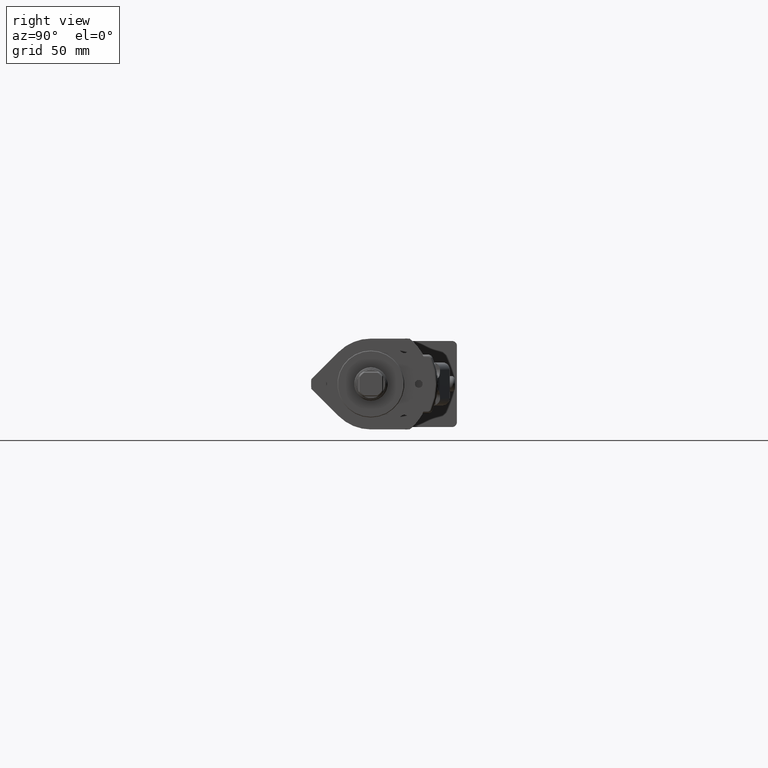
[diagram: clean part render]
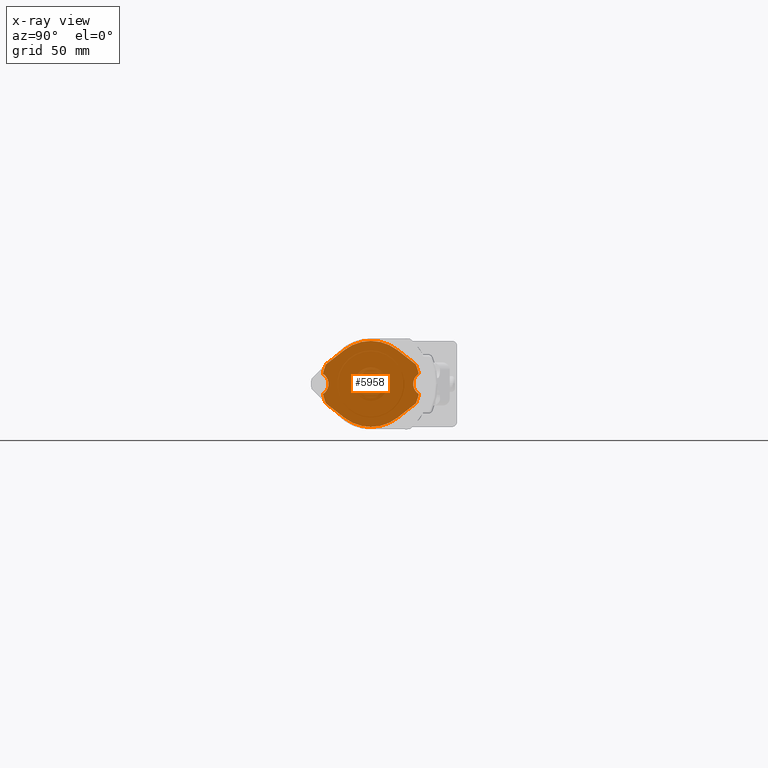
[diagram: x-ray — body ghosted, one internal face saturated and labeled with its STEP entity id]
A machine part, right view, then the same camera in x-ray: the body is ghosted and one INTERNAL B-rep face — a face not visible from any outside direction — is saturated and labeled: STEP entity #5958.
In plain terms, the highlighted planar face has unit normal (-1, 0, 0).
Its self-contained STEP definition (entity closure, byte-faithful):
#267 = DIRECTION ( 'NONE',  ( 0.0000000000000000000, 0.0000000000000000000, 1.000000000000000000 ) ) ;
#316 = CARTESIAN_POINT ( 'NONE',  ( -98.00000000000000000, 0.0000000000000000000, 0.0000000000000000000 ) ) ;
#328 = LINE ( 'NONE', #386, #8021 ) ;
#386 = CARTESIAN_POINT ( 'NONE',  ( -98.00000000000000000, -11.08190655586197000, -14.18419356492090700 ) ) ;
#738 = EDGE_CURVE ( 'NONE', #8998, #6715, #2213, .T. ) ;
#982 = EDGE_CURVE ( 'NONE', #8189, #3663, #2097, .T. ) ;
#1000 = CARTESIAN_POINT ( 'NONE',  ( -98.00000000000000000, -18.81285030327931900, 8.144118335731819900 ) ) ;
#1057 = DIRECTION ( 'NONE',  ( 0.0000000000000000000, 0.0000000000000000000, 1.000000000000000000 ) ) ;
#1116 = EDGE_CURVE ( 'NONE', #4750, #4584, #6874, .T. ) ;
#1174 = ORIENTED_EDGE ( 'NONE', *, *, #8829, .F. ) ;
#1193 = DIRECTION ( 'NONE',  ( -1.000000000000000000, 0.0000000000000000000, 0.0000000000000000000 ) ) ;
#1366 = AXIS2_PLACEMENT_3D ( 'NONE', #316, #5522, #1057 ) ;
#1638 = CIRCLE ( 'NONE', #7317, 20.50000000000000000 ) ;
#1760 = DIRECTION ( 'NONE',  ( 0.0000000000000000000, 0.7880107536067255700, 0.6156614753256536300 ) ) ;
#1796 = CIRCLE ( 'NONE', #6927, 18.00000000000000700 ) ;
#1833 = EDGE_CURVE ( 'NONE', #8449, #4750, #8957, .T. ) ;
#1948 = EDGE_CURVE ( 'NONE', #3964, #5835, #328, .T. ) ;
#2097 = CIRCLE ( 'NONE', #5967, 5.000000000000001800 ) ;
#2127 = CARTESIAN_POINT ( 'NONE',  ( -98.00000000000000000, 18.81285030327931900, 8.144118335731814500 ) ) ;
#2213 = LINE ( 'NONE', #1000, #5929 ) ;
#2232 = DIRECTION ( 'NONE',  ( -1.000000000000000000, 0.0000000000000000000, 0.0000000000000000000 ) ) ;
#2244 = ORIENTED_EDGE ( 'NONE', *, *, #3105, .F. ) ;
#2287 = ORIENTED_EDGE ( 'NONE', *, *, #1833, .F. ) ;
#2336 = DIRECTION ( 'NONE',  ( 0.0000000000000000000, -0.7880107536067163500, -0.6156614753256655100 ) ) ;
#2437 = CARTESIAN_POINT ( 'NONE',  ( -98.00000000000000000, -20.05594713656387600, -4.243699383245148800 ) ) ;
#2642 = DIRECTION ( 'NONE',  ( -1.000000000000000000, 0.0000000000000000000, 0.0000000000000000000 ) ) ;
#2699 = CARTESIAN_POINT ( 'NONE',  ( -98.00000000000000000, -11.08190655586197000, -14.18419356492090700 ) ) ;
#2706 = ORIENTED_EDGE ( 'NONE', *, *, #5914, .F. ) ;
#2724 = ORIENTED_EDGE ( 'NONE', *, *, #9109, .F. ) ;
#2912 = CARTESIAN_POINT ( 'NONE',  ( -98.00000000000000000, -20.05594713656387600, 4.243699383245148800 ) ) ;
#3004 = VECTOR ( 'NONE', #2336, 1000.000000000000000 ) ;
#3033 = CARTESIAN_POINT ( 'NONE',  ( -98.00000000000000000, 0.0000000000000000000, 0.0000000000000000000 ) ) ;
#3105 = EDGE_CURVE ( 'NONE', #7339, #4996, #8113, .T. ) ;
#3165 = DIRECTION ( 'NONE',  ( -1.000000000000000000, 0.0000000000000000000, 0.0000000000000000000 ) ) ;
#3282 = CIRCLE ( 'NONE', #4370, 5.000000000000003600 ) ;
#3323 = DIRECTION ( 'NONE',  ( -1.000000000000000000, 0.0000000000000000000, 0.0000000000000000000 ) ) ;
#3512 = CIRCLE ( 'NONE', #3843, 20.50000000000000000 ) ;
#3590 = CARTESIAN_POINT ( 'NONE',  ( -98.00000000000000000, 20.05594713656387600, -4.243699383245150600 ) ) ;
#3647 = VERTEX_POINT ( 'NONE', #3590 ) ;
#3663 = VERTEX_POINT ( 'NONE', #2912 ) ;
#3791 = DIRECTION ( 'NONE',  ( 0.0000000000000000000, 0.0000000000000000000, 1.000000000000000000 ) ) ;
#3843 = AXIS2_PLACEMENT_3D ( 'NONE', #7117, #2642, #7849 ) ;
#3903 = ORIENTED_EDGE ( 'NONE', *, *, #982, .F. ) ;
#3908 = ORIENTED_EDGE ( 'NONE', *, *, #5917, .F. ) ;
#3964 = VERTEX_POINT ( 'NONE', #2699 ) ;
#4055 = CARTESIAN_POINT ( 'NONE',  ( -98.00000000000000000, -22.69999999999999900, 0.0000000000000000000 ) ) ;
#4144 = CARTESIAN_POINT ( 'NONE',  ( -98.00000000000000000, 22.69999999999999900, 0.0000000000000000000 ) ) ;
#4156 = CARTESIAN_POINT ( 'NONE',  ( -98.00000000000000000, -11.08190655586177100, 14.18419356492105600 ) ) ;
#4303 = AXIS2_PLACEMENT_3D ( 'NONE', #9217, #4754, #267 ) ;
#4370 = AXIS2_PLACEMENT_3D ( 'NONE', #4144, #9365, #4897 ) ;
#4584 = VERTEX_POINT ( 'NONE', #7920 ) ;
#4619 = CARTESIAN_POINT ( 'NONE',  ( -98.00000000000000000, 11.08190655586176700, 14.18419356492105800 ) ) ;
#4674 = AXIS2_PLACEMENT_3D ( 'NONE', #7649, #3165, #8382 ) ;
#4750 = VERTEX_POINT ( 'NONE', #4789 ) ;
#4754 = DIRECTION ( 'NONE',  ( -1.000000000000000000, 0.0000000000000000000, 0.0000000000000000000 ) ) ;
#4789 = CARTESIAN_POINT ( 'NONE',  ( -98.00000000000000000, 11.08190655586197500, -14.18419356492090500 ) ) ;
#4807 = DIRECTION ( 'NONE',  ( 0.0000000000000000000, 0.0000000000000000000, 1.000000000000000000 ) ) ;
#4832 = ORIENTED_EDGE ( 'NONE', *, *, #5358, .F. ) ;
#4897 = DIRECTION ( 'NONE',  ( 0.0000000000000000000, 0.0000000000000000000, 1.000000000000000000 ) ) ;
#4928 = PLANE ( 'NONE',  #6867 ) ;
#4996 = VERTEX_POINT ( 'NONE', #2127 ) ;
#5204 = CARTESIAN_POINT ( 'NONE',  ( -98.00000000000000000, 11.08190655586176700, 14.18419356492105800 ) ) ;
#5253 = FACE_OUTER_BOUND ( 'NONE', #9689, .T. ) ;
#5339 = ORIENTED_EDGE ( 'NONE', *, *, #738, .F. ) ;
#5358 = EDGE_CURVE ( 'NONE', #4584, #3964, #1796, .T. ) ;
#5467 = AXIS2_PLACEMENT_3D ( 'NONE', #6702, #2232, #7452 ) ;
#5522 = DIRECTION ( 'NONE',  ( -1.000000000000000000, 0.0000000000000000000, 0.0000000000000000000 ) ) ;
#5660 = CARTESIAN_POINT ( 'NONE',  ( -98.00000000000000000, 0.0000000000000000000, 0.0000000000000000000 ) ) ;
#5835 = VERTEX_POINT ( 'NONE', #6256 ) ;
#5845 = EDGE_CURVE ( 'NONE', #4996, #5847, #9485, .T. ) ;
#5847 = VERTEX_POINT ( 'NONE', #8499 ) ;
#5870 = CIRCLE ( 'NONE', #5467, 18.00000000000000000 ) ;
#5914 = EDGE_CURVE ( 'NONE', #5835, #8189, #3512, .T. ) ;
#5917 = EDGE_CURVE ( 'NONE', #5847, #3647, #3282, .T. ) ;
#5929 = VECTOR ( 'NONE', #1760, 1000.000000000000100 ) ;
#5958 = ADVANCED_FACE ( 'NONE', ( #5253 ), #4928, .F. ) ;
#5967 = AXIS2_PLACEMENT_3D ( 'NONE', #4055, #9280, #4807 ) ;
#6016 = CARTESIAN_POINT ( 'NONE',  ( -98.00000000000000000, 18.81285030327943600, -8.144118335731549900 ) ) ;
#6188 = DIRECTION ( 'NONE',  ( 0.0000000000000000000, -0.7880107536067168000, 0.6156614753256649500 ) ) ;
#6256 = CARTESIAN_POINT ( 'NONE',  ( -98.00000000000000000, -18.81285030327943300, -8.144118335731558700 ) ) ;
#6420 = DIRECTION ( 'NONE',  ( 0.0000000000000000000, 0.0000000000000000000, 1.000000000000000000 ) ) ;
#6641 = EDGE_CURVE ( 'NONE', #3663, #8998, #1638, .T. ) ;
#6702 = CARTESIAN_POINT ( 'NONE',  ( -98.00000000000000000, 0.0000000000000000000, 0.0000000000000000000 ) ) ;
#6715 = VERTEX_POINT ( 'NONE', #4156 ) ;
#6867 = AXIS2_PLACEMENT_3D ( 'NONE', #5660, #1193, #6420 ) ;
#6870 = DIRECTION ( 'NONE',  ( 0.0000000000000000000, 0.7880107536067254600, -0.6156614753256537400 ) ) ;
#6874 = CIRCLE ( 'NONE', #4303, 18.00000000000000700 ) ;
#6927 = AXIS2_PLACEMENT_3D ( 'NONE', #3033, #8248, #3791 ) ;
#7117 = CARTESIAN_POINT ( 'NONE',  ( -98.00000000000000000, 0.0000000000000000000, 0.0000000000000000000 ) ) ;
#7317 = AXIS2_PLACEMENT_3D ( 'NONE', #7797, #3323, #8543 ) ;
#7339 = VERTEX_POINT ( 'NONE', #5204 ) ;
#7452 = DIRECTION ( 'NONE',  ( 0.0000000000000000000, 0.0000000000000000000, 1.000000000000000000 ) ) ;
#7649 = CARTESIAN_POINT ( 'NONE',  ( -98.00000000000000000, 0.0000000000000000000, 0.0000000000000000000 ) ) ;
#7762 = CIRCLE ( 'NONE', #4674, 20.50000000000000000 ) ;
#7797 = CARTESIAN_POINT ( 'NONE',  ( -98.00000000000000000, 0.0000000000000000000, 0.0000000000000000000 ) ) ;
#7843 = CARTESIAN_POINT ( 'NONE',  ( -98.00000000000000000, -18.81285030327931900, 8.144118335731819900 ) ) ;
#7849 = DIRECTION ( 'NONE',  ( 0.0000000000000000000, 0.0000000000000000000, 1.000000000000000000 ) ) ;
#7920 = CARTESIAN_POINT ( 'NONE',  ( -98.00000000000000000, 0.0000000000000000000, -18.00000000000000700 ) ) ;
#8021 = VECTOR ( 'NONE', #6188, 999.9999999999998900 ) ;
#8107 = ORIENTED_EDGE ( 'NONE', *, *, #1948, .F. ) ;
#8113 = LINE ( 'NONE', #4619, #9644 ) ;
#8189 = VERTEX_POINT ( 'NONE', #2437 ) ;
#8248 = DIRECTION ( 'NONE',  ( -1.000000000000000000, 0.0000000000000000000, 0.0000000000000000000 ) ) ;
#8382 = DIRECTION ( 'NONE',  ( 0.0000000000000000000, 0.0000000000000000000, 1.000000000000000000 ) ) ;
#8449 = VERTEX_POINT ( 'NONE', #8502 ) ;
#8499 = CARTESIAN_POINT ( 'NONE',  ( -98.00000000000000000, 20.05594713656387300, 4.243699383245149700 ) ) ;
#8502 = CARTESIAN_POINT ( 'NONE',  ( -98.00000000000000000, 18.81285030327943600, -8.144118335731549900 ) ) ;
#8506 = ORIENTED_EDGE ( 'NONE', *, *, #5845, .F. ) ;
#8543 = DIRECTION ( 'NONE',  ( 0.0000000000000000000, 0.0000000000000000000, 1.000000000000000000 ) ) ;
#8829 = EDGE_CURVE ( 'NONE', #3647, #8449, #7762, .T. ) ;
#8911 = ORIENTED_EDGE ( 'NONE', *, *, #1116, .F. ) ;
#8957 = LINE ( 'NONE', #6016, #3004 ) ;
#8998 = VERTEX_POINT ( 'NONE', #7843 ) ;
#9109 = EDGE_CURVE ( 'NONE', #6715, #7339, #5870, .T. ) ;
#9156 = ORIENTED_EDGE ( 'NONE', *, *, #6641, .F. ) ;
#9217 = CARTESIAN_POINT ( 'NONE',  ( -98.00000000000000000, 0.0000000000000000000, 0.0000000000000000000 ) ) ;
#9280 = DIRECTION ( 'NONE',  ( 1.000000000000000000, -0.0000000000000000000, -0.0000000000000000000 ) ) ;
#9365 = DIRECTION ( 'NONE',  ( 1.000000000000000000, -0.0000000000000000000, -0.0000000000000000000 ) ) ;
#9485 = CIRCLE ( 'NONE', #1366, 20.49999999999999600 ) ;
#9644 = VECTOR ( 'NONE', #6870, 1000.000000000000200 ) ;
#9689 = EDGE_LOOP ( 'NONE', ( #9156, #3903, #2706, #8107, #4832, #8911, #2287, #1174, #3908, #8506, #2244, #2724, #5339 ) ) ;